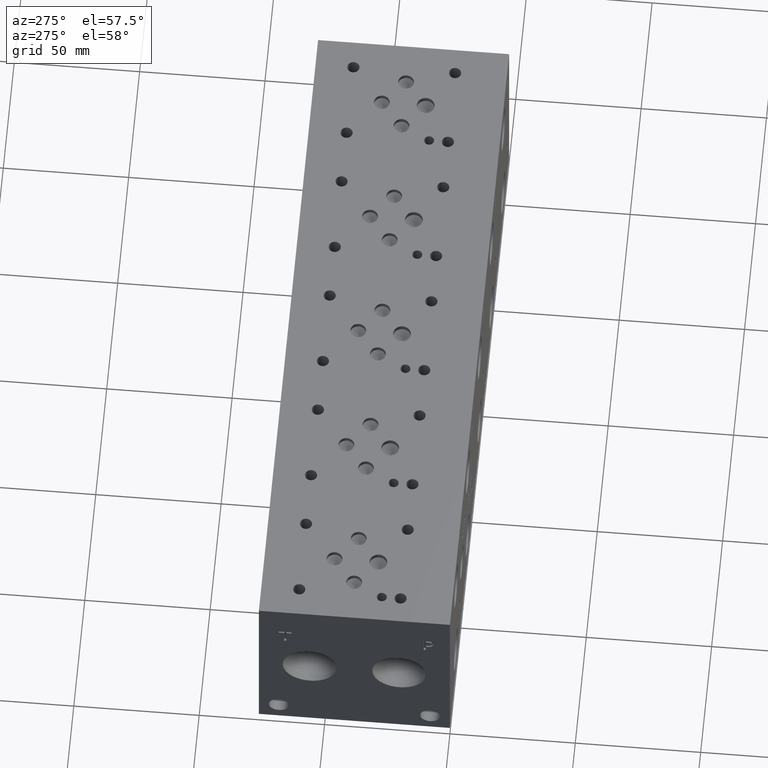
[diagram: clean part render]
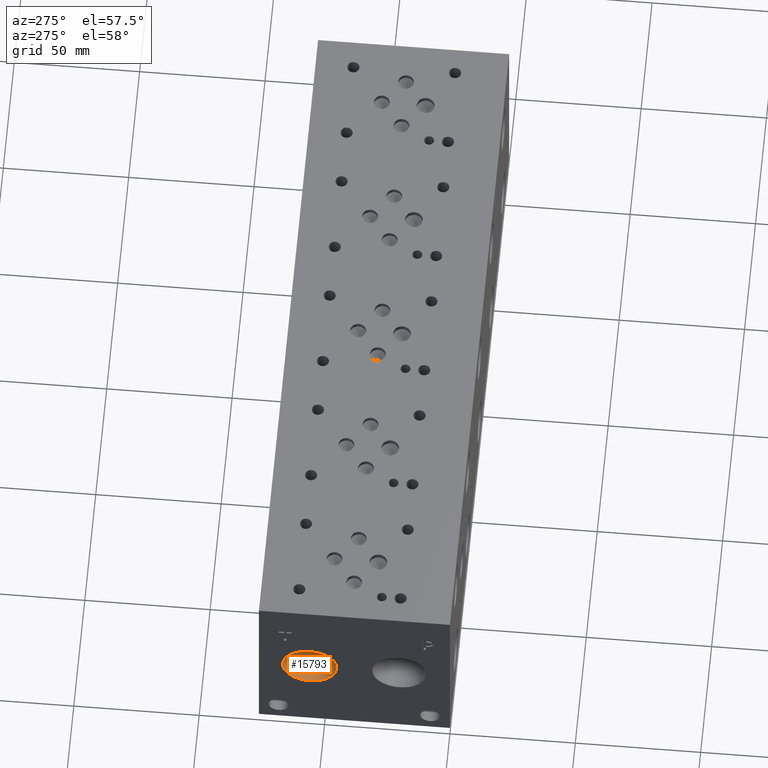
[diagram: same view with one face highlighted and labeled with its STEP entity id]
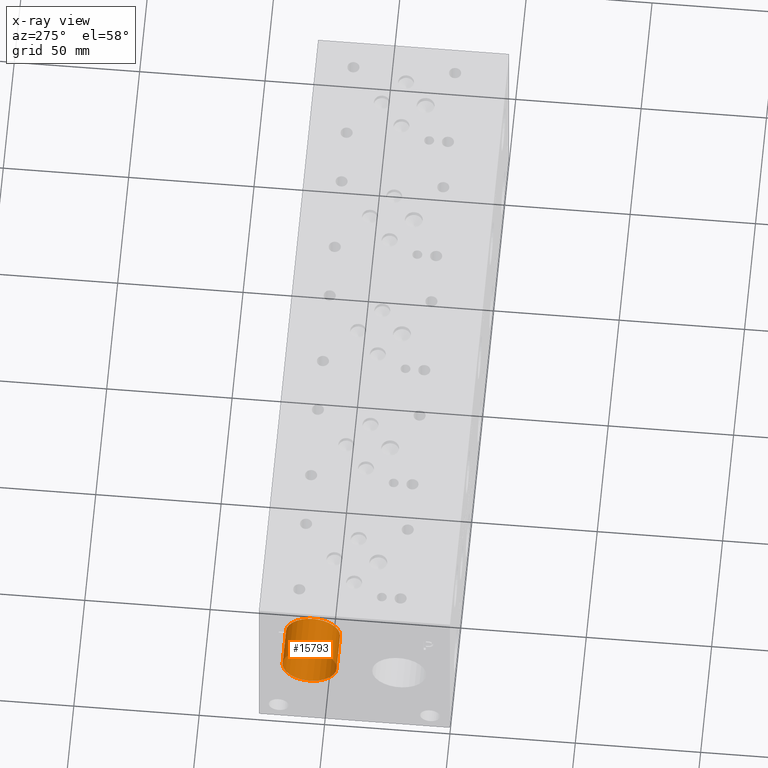
[diagram: x-ray of the same camera — body ghosted, the highlighted face saturated]
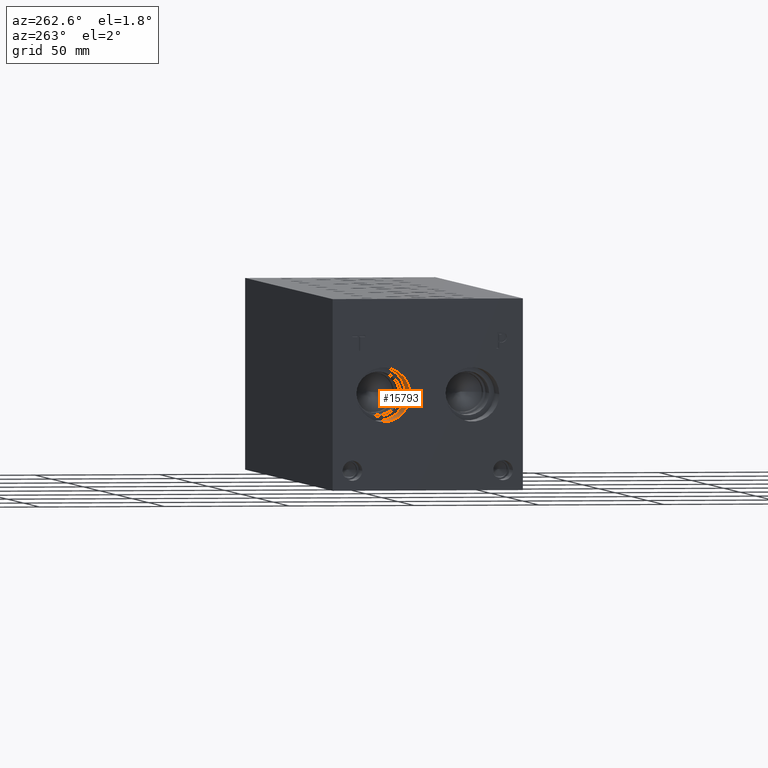
[diagram: same view with one face highlighted and labeled with its STEP entity id]
A machine part, auxiliary view. The second image highlights one B-rep face of the part: STEP entity #15793.
The next image is the same camera in x-ray: the body ghosted, the highlighted face saturated — about 0% of this face is hidden behind the body in this view.
A second angle (auxiliary view) of the same face is appended — the face is thin or edge-on in the first view.
In plain terms, the highlighted cylindrical surface (bore or boss wall) has radius 10.795 mm, axis along (-1, 0, 0).
Its self-contained STEP definition (entity closure, byte-faithful):
#54=CYLINDRICAL_SURFACE('',#16566,10.795);
#219=CIRCLE('',#16360,10.795);
#220=CIRCLE('',#16361,10.795);
#331=CIRCLE('',#16563,10.795);
#332=CIRCLE('',#16564,10.795);
#1858=FACE_OUTER_BOUND('',#2776,.T.);
#2776=EDGE_LOOP('',(#13586,#13587,#13588,#13589,#13590,#13591));
#4264=LINE('',#26819,#5663);
#5663=VECTOR('',#19475,10.795);
#7297=VERTEX_POINT('',#26375);
#7298=VERTEX_POINT('',#26376);
#7444=VERTEX_POINT('',#26812);
#7445=VERTEX_POINT('',#26813);
#9374=EDGE_CURVE('',#7297,#7298,#219,.T.);
#9375=EDGE_CURVE('',#7298,#7297,#220,.T.);
#9573=EDGE_CURVE('',#7444,#7445,#331,.T.);
#9574=EDGE_CURVE('',#7445,#7444,#332,.T.);
#9576=EDGE_CURVE('',#7298,#7445,#4264,.T.);
#13586=ORIENTED_EDGE('',*,*,#9374,.F.);
#13587=ORIENTED_EDGE('',*,*,#9375,.F.);
#13588=ORIENTED_EDGE('',*,*,#9576,.T.);
#13589=ORIENTED_EDGE('',*,*,#9573,.F.);
#13590=ORIENTED_EDGE('',*,*,#9574,.F.);
#13591=ORIENTED_EDGE('',*,*,#9576,.F.);
#15793=ADVANCED_FACE('',(#1858),#54,.F.);
#16360=AXIS2_PLACEMENT_3D('',#26377,#18974,#18975);
#16361=AXIS2_PLACEMENT_3D('',#26378,#18976,#18977);
#16563=AXIS2_PLACEMENT_3D('',#26814,#19467,#19468);
#16564=AXIS2_PLACEMENT_3D('',#26815,#19469,#19470);
#16566=AXIS2_PLACEMENT_3D('',#26818,#19473,#19474);
#18974=DIRECTION('center_axis',(1.,0.,0.));
#18975=DIRECTION('ref_axis',(0.,1.,0.));
#18976=DIRECTION('center_axis',(1.,0.,0.));
#18977=DIRECTION('ref_axis',(0.,1.,0.));
#19467=DIRECTION('center_axis',(-1.,0.,0.));
#19468=DIRECTION('ref_axis',(0.,1.,0.));
#19469=DIRECTION('center_axis',(-1.,0.,0.));
#19470=DIRECTION('ref_axis',(0.,1.,0.));
#19473=DIRECTION('center_axis',(-1.,0.,0.));
#19474=DIRECTION('ref_axis',(0.,1.,0.));
#19475=DIRECTION('',(1.,0.,0.));
#26375=CARTESIAN_POINT('',(0.,66.7512,38.1));
#26376=CARTESIAN_POINT('',(0.,45.1612,38.1));
#26377=CARTESIAN_POINT('Origin',(0.,55.9562,38.1));
#26378=CARTESIAN_POINT('Origin',(0.,55.9562,38.1));
#26812=CARTESIAN_POINT('',(15.367,66.7512,38.1));
#26813=CARTESIAN_POINT('',(15.367,45.1612,38.1));
#26814=CARTESIAN_POINT('Origin',(15.367,55.9562,38.1));
#26815=CARTESIAN_POINT('Origin',(15.367,55.9562,38.1));
#26818=CARTESIAN_POINT('Origin',(7.6835,55.9562,38.1));
#26819=CARTESIAN_POINT('',(7.6835,45.1612,38.1));